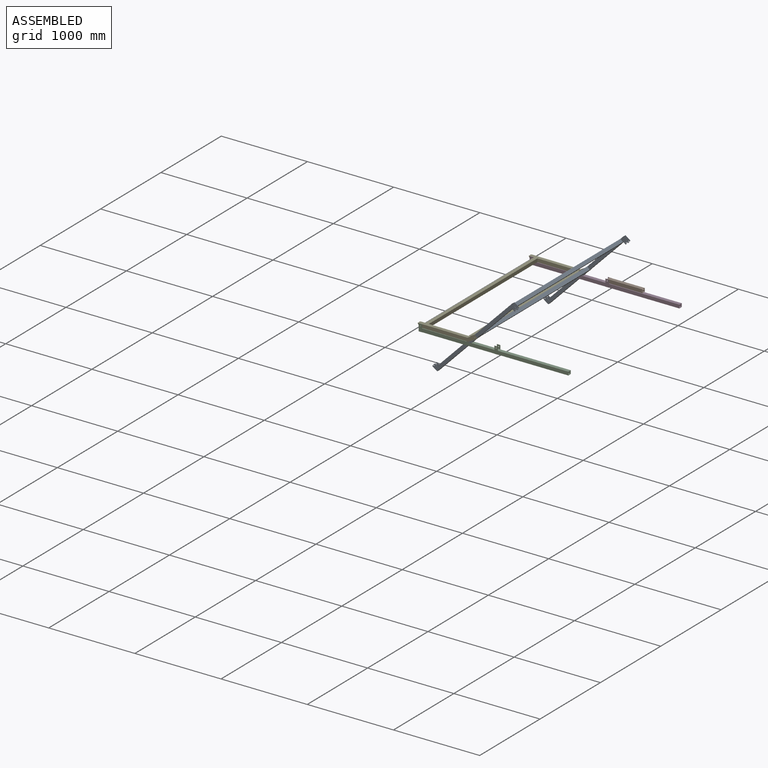
[diagram: assembled view]
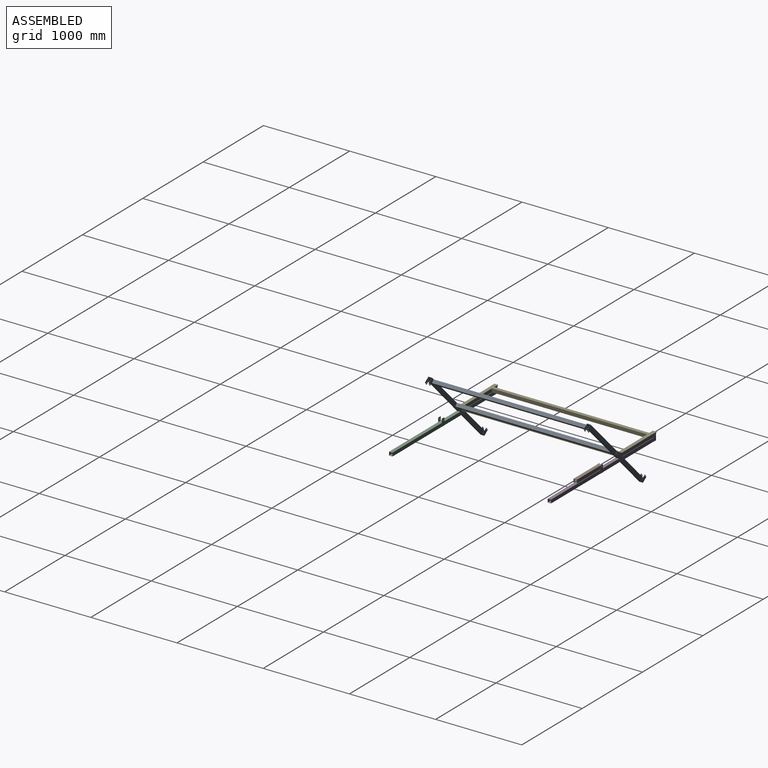
[diagram: assembled view, second angle]
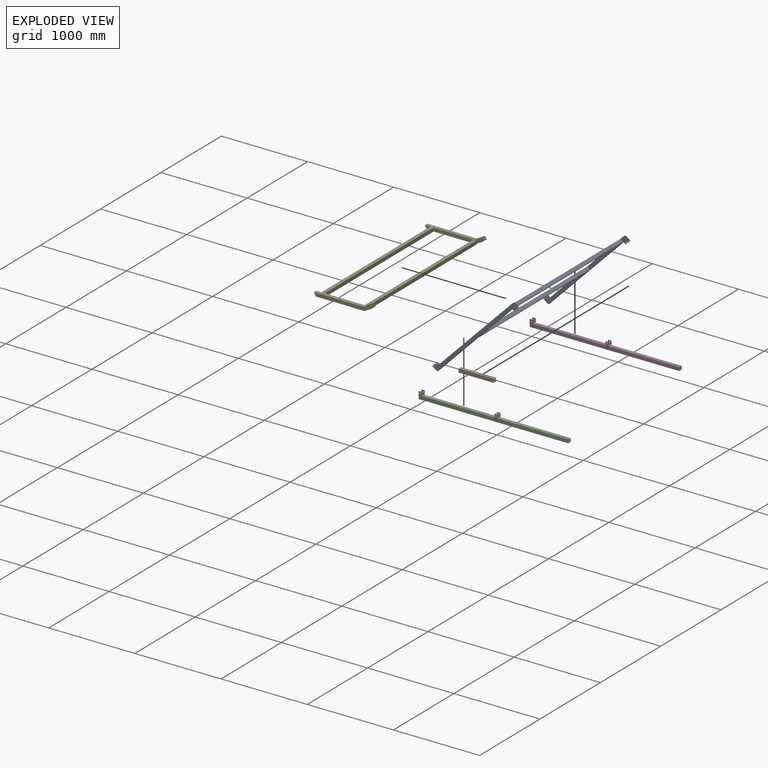
[diagram: exploded view]
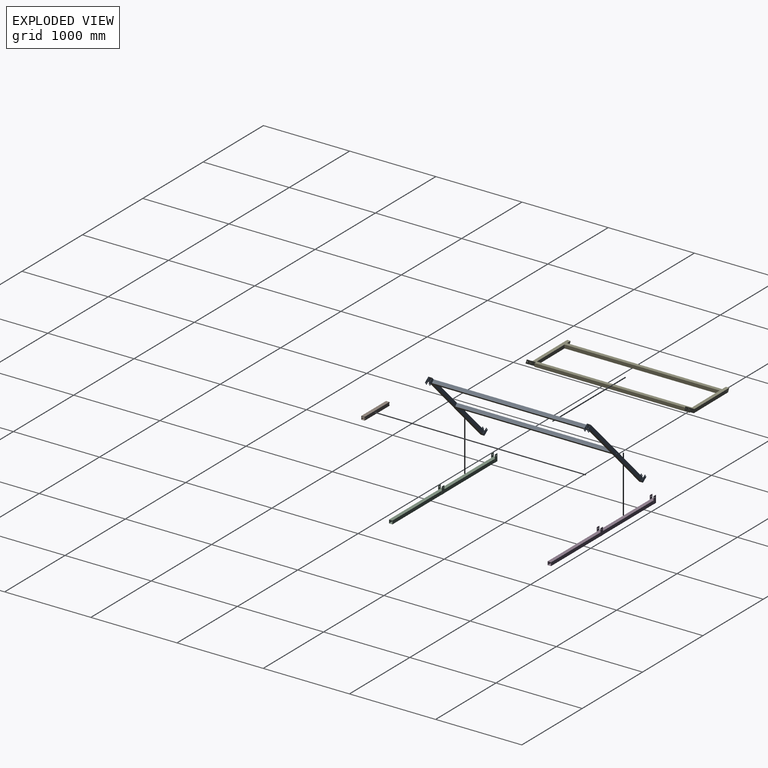
[diagram: exploded view, second angle]
ASSEMBLY  parts=5 mates=3
PART A: 86 faces, bbox 606.6x1884x1205.7 mm
  f0: plane 474.1x263.74mm, normal (0,-1,0), area 20400mm2, adj f4,f5,f43,f44
  f1: plane 577.73x324.45mm, normal (0,-1,0), area 24384.4mm2, adj f4,f5,f6,f16,f17,f42
  f2: plane 44.72x40mm, normal (0,0,-1), area 419.2mm2, adj f4,f5,f9,f10,f12,f13,f20,f34
  f3: plane 44.72x40mm, normal (0,0,1), area 419.2mm2, adj f4,f5,f9,f10,f12,f13,f21,f41
  f4: plane 1880x1124.48mm, normal (0.89,0,0.45), area 244562.8mm2, adj f0,f1,f2,f3,f7,f8,f21,f41
  f5: plane 1880x1124.48mm, normal (-0.89,0,-0.45), area 244562.8mm2, adj f0,f1,f2,f3,f7,f8,f20,f34
  f6: cylinder r=5mm len=40mm, axis (0,-1,0), area 1256.6mm2, adj f1,f7
  f7: plane 1124.48x606.57mm, normal (0,1,0), area 48262mm2, adj f4,f5,f6,f29,f30,f37,f39
  f8: plane 54.19x36.85mm, normal (0,-1,0), area 277.6mm2, adj f4,f5,f23,f24,f45
  f9: plane 1124.48x561.85mm, normal (-0.89,0,-0.45), area 43996.2mm2, adj f2,f3,f12,f13
  f10: plane 1124.48x561.85mm, normal (0.89,0,0.45), area 43996.2mm2, adj f2,f3,f12,f13
  f11: cylinder r=7.5mm len=35mm, axis (0,-1,0), area 1649.3mm2, adj f12,f13
  f12: plane 1124.48x600.98mm, normal (0,-1,0), area 43819.5mm2, adj f2,f3,f9,f10,f11
  f13: plane 1124.48x600.98mm, normal (0,1,0), area 43819.5mm2, adj f2,f3,f9,f10,f11
  f14: plane 32.61x23.17mm, normal (-0.82,0,-0.58), area 80mm2, adj f15,f17,f19,f20
  f15: plane 57.17x40.63mm, normal (0.58,0,-0.82), area 140.3mm2, adj f14,f16,f19,f20
  f16: plane 32.61x23.17mm, normal (0.82,0,0.58), area 80mm2, adj f1,f15,f17,f19
  f17: plane 57.17x40.63mm, normal (-0.58,0,0.82), area 140.3mm2, adj f1,f14,f16,f19,f20
  f18: cylinder r=5mm len=10mm, axis (0,1,0), area 62.8mm2, adj f19,f20
  f19: plane 80.34x73.24mm, normal (0,-1,0), area 2727mm2, adj f14,f15,f16,f17,f18
  f20: plane 80.34x53.39mm, normal (0,1,0), area 1756.6mm2, adj f2,f5,f14,f15,f17,f18
  f21: plane 80.34x53.39mm, normal (0,1,0), area 1756.6mm2, adj f3,f4,f22,f24,f25,f26
  f22: plane 57.17x40.63mm, normal (-0.58,0,0.82), area 140.3mm2, adj f21,f23,f26,f27
  f23: plane 32.61x23.17mm, normal (-0.82,0,-0.58), area 80mm2, adj f8,f22,f24,f27
  f24: plane 57.17x40.63mm, normal (0.58,0,-0.82), area 140.3mm2, adj f8,f21,f23,f26,f27
  f25: cylinder r=5mm len=10mm, axis (0,1,0), area 62.8mm2, adj f21,f27
  f26: plane 32.61x23.17mm, normal (0.82,0,0.58), area 80mm2, adj f21,f22,f24,f27
  f27: plane 80.34x73.24mm, normal (0,-1,0), area 2727mm2, adj f22,f23,f24,f25,f26
  f28: plane 32.61x23.17mm, normal (-0.82,0,-0.58), area 80mm2, adj f29,f31,f33,f34
  f29: plane 57.17x40.63mm, normal (-0.58,0,0.82), area 140.3mm2, adj f7,f28,f30,f33,f34
  f30: plane 32.61x23.17mm, normal (0.82,0,0.58), area 80mm2, adj f7,f29,f31,f33
  f31: plane 57.17x40.63mm, normal (0.58,0,-0.82), area 140.3mm2, adj f28,f30,f33,f34
  f32: cylinder r=5mm len=10mm, axis (0,-1,0), area 62.8mm2, adj f33,f34
  f33: plane 80.34x73.24mm, normal (0,1,0), area 2727mm2, adj f28,f29,f30,f31,f32
  f34: plane 80.34x53.39mm, normal (0,-1,0), area 1756.6mm2, adj f2,f5,f28,f29,f31,f32
  f35: plane 57.17x40.63mm, normal (-0.58,0,0.82), area 140.3mm2, adj f36,f39,f40,f41
  f36: plane 32.61x23.17mm, normal (0.82,0,0.58), area 80mm2, adj f35,f37,f40,f41
  f37: plane 57.17x40.63mm, normal (0.58,0,-0.82), area 140.3mm2, adj f7,f36,f39,f40,f41
  f38: cylinder r=5mm len=10mm, axis (0,-1,0), area 62.8mm2, adj f40,f41
  f39: plane 32.61x23.17mm, normal (-0.82,0,-0.58), area 80mm2, adj f7,f35,f37,f40
  f40: plane 80.34x73.24mm, normal (0,1,0), area 2727mm2, adj f35,f36,f37,f38,f39
  f41: plane 80.34x53.39mm, normal (0,-1,0), area 1756.6mm2, adj f3,f4,f35,f36,f37,f38
  f42: plane 1800x35.78mm, normal (0.45,0,-0.89), area 72000mm2, adj f1,f4,f5,f47
  f43: plane 1800x35.78mm, normal (-0.45,0,0.89), area 72000mm2, adj f0,f4,f5,f46
  f44: plane 1800x35.78mm, normal (0.45,0,-0.89), area 72000mm2, adj f0,f4,f5,f46
  f45: plane 1800x35.78mm, normal (-0.45,0,0.89), area 72000mm2, adj f4,f5,f8,f52
  f46: plane 474.1x263.74mm, normal (0,1,0), area 20400mm2, adj f4,f5,f43,f44
  f47: plane 577.73x324.45mm, normal (0,1,0), area 24384.4mm2, adj f4,f5,f42,f50,f60,f61
  f48: plane 44.72x40mm, normal (0,0,-1), area 419.2mm2, adj f4,f5,f53,f54,f56,f57,f64,f78
  f49: plane 44.72x40mm, normal (0,0,1), area 419.2mm2, adj f4,f5,f53,f54,f56,f57,f65,f85
  f50: cylinder r=5mm len=40mm, axis (0,1,0), area 1256.6mm2, adj f47,f51
  f51: plane 1124.48x606.57mm, normal (0,-1,0), area 48262mm2, adj f4,f5,f50,f73,f74,f81,f83
  f52: plane 54.19x36.85mm, normal (0,1,0), area 277.6mm2, adj f4,f5,f45,f67,f68
  f53: plane 1124.48x561.85mm, normal (-0.89,0,-0.45), area 43996.2mm2, adj f48,f49,f56,f57
  f54: plane 1124.48x561.85mm, normal (0.89,0,0.45), area 43996.2mm2, adj f48,f49,f56,f57
  f55: cylinder r=7.5mm len=35mm, axis (0,1,0), area 1649.3mm2, adj f56,f57
  f56: plane 1124.48x600.98mm, normal (0,1,0), area 43819.5mm2, adj f48,f49,f53,f54,f55
  f57: plane 1124.48x600.98mm, normal (0,-1,0), area 43819.5mm2, adj f48,f49,f53,f54,f55
  f58: plane 32.61x23.17mm, normal (-0.82,0,-0.58), area 80mm2, adj f59,f61,f63,f64
  f59: plane 57.17x40.63mm, normal (0.58,0,-0.82), area 140.3mm2, adj f58,f60,f63,f64
  f60: plane 32.61x23.17mm, normal (0.82,0,0.58), area 80mm2, adj f47,f59,f61,f63
  f61: plane 57.17x40.63mm, normal (-0.58,0,0.82), area 140.3mm2, adj f47,f58,f60,f63,f64
  f62: cylinder r=5mm len=10mm, axis (0,-1,0), area 62.8mm2, adj f63,f64
  f63: plane 80.34x73.24mm, normal (0,1,0), area 2727mm2, adj f58,f59,f60,f61,f62
  f64: plane 80.34x53.39mm, normal (0,-1,0), area 1756.6mm2, adj f5,f48,f58,f59,f61,f62
  f65: plane 80.34x53.39mm, normal (0,-1,0), area 1756.6mm2, adj f4,f49,f66,f68,f69,f70
  f66: plane 57.17x40.63mm, normal (-0.58,0,0.82), area 140.3mm2, adj f65,f67,f70,f71
  f67: plane 32.61x23.17mm, normal (-0.82,0,-0.58), area 80mm2, adj f52,f66,f68,f71
  f68: plane 57.17x40.63mm, normal (0.58,0,-0.82), area 140.3mm2, adj f52,f65,f67,f70,f71
  f69: cylinder r=5mm len=10mm, axis (0,-1,0), area 62.8mm2, adj f65,f71
  f70: plane 32.61x23.17mm, normal (0.82,0,0.58), area 80mm2, adj f65,f66,f68,f71
  f71: plane 80.34x73.24mm, normal (0,1,0), area 2727mm2, adj f66,f67,f68,f69,f70
  f72: plane 32.61x23.17mm, normal (-0.82,0,-0.58), area 80mm2, adj f73,f75,f77,f78
  f73: plane 57.17x40.63mm, normal (-0.58,0,0.82), area 140.3mm2, adj f51,f72,f74,f77,f78
  f74: plane 32.61x23.17mm, normal (0.82,0,0.58), area 80mm2, adj f51,f73,f75,f77
  f75: plane 57.17x40.63mm, normal (0.58,0,-0.82), area 140.3mm2, adj f72,f74,f77,f78
  f76: cylinder r=5mm len=10mm, axis (0,1,0), area 62.8mm2, adj f77,f78
  f77: plane 80.34x73.24mm, normal (0,-1,0), area 2727mm2, adj f72,f73,f74,f75,f76
  f78: plane 80.34x53.39mm, normal (0,1,0), area 1756.6mm2, adj f5,f48,f72,f73,f75,f76
  f79: plane 57.17x40.63mm, normal (-0.58,0,0.82), area 140.3mm2, adj f80,f83,f84,f85
  f80: plane 32.61x23.17mm, normal (0.82,0,0.58), area 80mm2, adj f79,f81,f84,f85
  f81: plane 57.17x40.63mm, normal (0.58,0,-0.82), area 140.3mm2, adj f51,f80,f83,f84,f85
  f82: cylinder r=5mm len=10mm, axis (0,1,0), area 62.8mm2, adj f84,f85
  f83: plane 32.61x23.17mm, normal (-0.82,0,-0.58), area 80mm2, adj f51,f79,f81,f84
  f84: plane 80.34x73.24mm, normal (0,-1,0), area 2727mm2, adj f79,f80,f81,f82,f83
  f85: plane 80.34x53.39mm, normal (0,1,0), area 1756.6mm2, adj f4,f49,f79,f80,f81,f82
PART B: 15 faces, bbox 409.8x40x40 mm
  f0: plane 40x15.67mm, normal (1,0,0), area 261.8mm2, adj f4,f5,f7,f8,f10,f11,f13,f14
  f1: plane 40x15.67mm, normal (1,0,0), area 261.8mm2, adj f3,f5,f7,f8,f9,f11,f13,f14
  f2: plane 40x40mm, normal (-1,0,0), area 375mm2, adj f3,f4,f7,f8,f9,f10,f13,f14
  f3: plane 409.77x40mm, normal (0,0,1), area 16390.8mm2, adj f1,f2,f7,f8
  f4: plane 409.77x40mm, normal (0,0,-1), area 16390.8mm2, adj f0,f2,f7,f8
  f5: cylinder r=5mm len=40mm, axis (0,-1,0), area 837.8mm2, adj f0,f1,f7,f8
  f6: cylinder r=5mm len=40mm, axis (0,-1,0), area 1256.6mm2, adj f7,f8
  f7: plane 409.77x40mm, normal (0,1,0), area 16249mm2, adj f0,f1,f2,f3,f4,f5,f6
  f8: plane 409.77x40mm, normal (0,-1,0), area 16249mm2, adj f0,f1,f2,f3,f4,f5,f6
  f9: plane 409.77x35mm, normal (0,0,-1), area 14341.9mm2, adj f1,f2,f13,f14
  f10: plane 409.77x35mm, normal (0,0,1), area 14341.9mm2, adj f0,f2,f13,f14
  f11: cylinder r=7.5mm len=35mm, axis (0,-1,0), area 1003.1mm2, adj f0,f1,f13,f14
  f12: cylinder r=7.5mm len=35mm, axis (0,-1,0), area 1649.3mm2, adj f13,f14
  f13: plane 409.77x35mm, normal (0,-1,0), area 14040mm2, adj f0,f1,f2,f9,f10,f11,f12
  f14: plane 409.77x35mm, normal (0,1,0), area 14040mm2, adj f0,f1,f2,f9,f10,f11,f12
PART C: 34 faces, bbox 1735.5x44x85 mm
  f0: plane 816.96x40mm, normal (0,1,0), area 32678.5mm2, adj f5,f6,f7,f29
  f1: plane 838.5x40mm, normal (0,1,0), area 33540mm2, adj f6,f7,f24,f31
  f2: plane 816.96x40mm, normal (0,-1,0), area 32678.5mm2, adj f5,f6,f7,f21
  f3: plane 838.5x40mm, normal (0,-1,0), area 33540mm2, adj f6,f7,f13,f19
  f4: plane 85x44mm, normal (-1,0,0), area 715mm2, adj f6,f7,f8,f9,f10,f11,f12,f14
  f5: plane 40x40mm, normal (1,0,0), area 375mm2, adj f0,f2,f6,f7,f8,f9,f10,f11
  f6: plane 1735.46x40mm, normal (0,0,1), area 69418.5mm2, adj f0,f1,f2,f3,f4,f5,f12,f17
  f7: plane 1735.46x44mm, normal (0,0,-1), area 69738.5mm2, adj f0,f1,f2,f3,f4,f5,f13,f16
  f8: plane 1735.46x35mm, normal (0,0,-1), area 60741.2mm2, adj f4,f5,f10,f11
  f9: plane 1735.46x35mm, normal (0,0,1), area 60741.2mm2, adj f4,f5,f10,f11
  f10: plane 1735.46x35mm, normal (0,-1,0), area 60741.2mm2, adj f4,f5,f8,f9
  f11: plane 1735.46x35mm, normal (0,1,0), area 60741.2mm2, adj f4,f5,f8,f9
  f12: plane 45x40mm, normal (0,1,0), area 1721.5mm2, adj f4,f6,f13,f14,f15
  f13: plane 85x2mm, normal (1,0,0), area 170mm2, adj f3,f7,f12,f14,f16
  f14: plane 40x2mm, normal (0,0,1), area 80mm2, adj f4,f12,f13,f16
  f15: cylinder r=5mm len=10mm, axis (0,1,0), area 62.8mm2, adj f12,f16
  f16: plane 85x40mm, normal (0,-1,0), area 3321.5mm2, adj f4,f7,f13,f14,f15
  f17: plane 45x40mm, normal (0,1,0), area 1721.5mm2, adj f6,f18,f19,f20,f21
  f18: plane 40x2mm, normal (0,0,1), area 80mm2, adj f17,f19,f21,f22
  f19: plane 85x2mm, normal (-1,0,0), area 170mm2, adj f3,f7,f17,f18,f22
  f20: cylinder r=5mm len=10mm, axis (0,1,0), area 62.8mm2, adj f17,f22
  f21: plane 85x2mm, normal (1,0,0), area 170mm2, adj f2,f7,f17,f18,f22
  f22: plane 85x40mm, normal (0,-1,0), area 3321.5mm2, adj f7,f18,f19,f20,f21
  f23: plane 40x2mm, normal (0,0,1), area 80mm2, adj f4,f24,f26,f27
  f24: plane 85x2mm, normal (1,0,0), area 170mm2, adj f1,f7,f23,f26,f27
  f25: cylinder r=5mm len=10mm, axis (0,-1,0), area 62.8mm2, adj f26,f27
  f26: plane 85x40mm, normal (0,1,0), area 3321.5mm2, adj f4,f7,f23,f24,f25
  f27: plane 45x40mm, normal (0,-1,0), area 1721.5mm2, adj f4,f6,f23,f24,f25
  f28: plane 40x2mm, normal (0,0,1), area 80mm2, adj f29,f31,f32,f33
  f29: plane 85x2mm, normal (1,0,0), area 170mm2, adj f0,f7,f28,f32,f33
  f30: cylinder r=5mm len=10mm, axis (0,-1,0), area 62.8mm2, adj f32,f33
  f31: plane 85x2mm, normal (-1,0,0), area 170mm2, adj f1,f7,f28,f32,f33
  f32: plane 85x40mm, normal (0,1,0), area 3321.5mm2, adj f7,f28,f29,f30,f31
  f33: plane 45x40mm, normal (0,-1,0), area 1721.5mm2, adj f6,f28,f29,f30,f31
PART D: same geometry as C
PART E: 66 faces, bbox 304.3x1884x623.3 mm
  f0: plane 1800x35.78mm, normal (0.45,0,0.89), area 71871.3mm2, adj f2,f7,f8,f15,f19,f30,f32,f46
  f1: plane 429.37x241.39mm, normal (0,-1,0), area 18400mm2, adj f7,f8,f28,f29
  f2: plane 100.31x5.41mm, normal (1,0,0.05), area 200.9mm2, adj f0,f15,f17,f19
  f3: plane 62.91x54.3mm, normal (0,-1,0), area 1949.6mm2, adj f6,f7,f8,f9,f27
  f4: plane 515.57x298.12mm, normal (0,1,0), area 22575.5mm2, adj f6,f7,f8,f9,f20,f23
  f5: plane 44.75x40mm, normal (0.89,0,0.45), area 380.2mm2, adj f7,f8,f10,f11,f13,f14,f15,f26
  f6: plane 44.72x40mm, normal (0,0,-1), area 339.8mm2, adj f3,f4,f7,f8,f10,f11,f13,f14
  f7: plane 1880x519.47mm, normal (0.89,0,-0.45), area 189355.1mm2, adj f0,f1,f3,f4,f5,f6,f15,f27
  f8: plane 1880x551.9mm, normal (-0.89,0,0.45), area 193259.4mm2, adj f0,f1,f3,f4,f5,f6,f15,f16
  f9: cylinder r=5mm len=40mm, axis (0,-1,0), area 1256.6mm2, adj f3,f4
  f10: plane 509.39x254.52mm, normal (-0.89,0,0.45), area 20499.8mm2, adj f5,f6,f13,f14
  f11: plane 549.66x274.64mm, normal (0.89,0,-0.45), area 22120.5mm2, adj f5,f6,f13,f14
  f12: cylinder r=7mm len=36mm, axis (0,-1,0), area 1583.4mm2, adj f13,f14
  f13: plane 549.66x294.77mm, normal (0,-1,0), area 21156.2mm2, adj f5,f6,f10,f11,f12
  f14: plane 549.66x294.77mm, normal (0,1,0), area 21156.2mm2, adj f5,f6,f10,f11,f12
  f15: plane 116.13x52.35mm, normal (0,1,0), area 3603.5mm2, adj f0,f2,f5,f7,f8,f16,f17,f18
  f16: plane 105.57x5.69mm, normal (-1,0,-0.05), area 211.4mm2, adj f8,f15,f17,f19
  f17: plane 39.94x2.15mm, normal (-0.05,0,1), area 80mm2, adj f2,f15,f16,f19
  f18: cylinder r=5mm len=10mm, axis (0,1,0), area 62.8mm2, adj f15,f19
  f19: plane 107.72x45.35mm, normal (0,-1,0), area 3653.4mm2, adj f0,f2,f8,f16,f17,f18
  f20: plane 116.13x6.26mm, normal (-1,0,-0.05), area 232.6mm2, adj f4,f21,f23,f25,f26
  f21: plane 39.94x2.15mm, normal (-0.05,0,1), area 80mm2, adj f20,f22,f25,f26
  f22: plane 116.13x6.26mm, normal (1,0,0.05), area 232.6mm2, adj f21,f23,f25,f26
  f23: plane 39.94x2.15mm, normal (0.05,0,-1), area 80mm2, adj f4,f20,f22,f25
  f24: cylinder r=5mm len=10mm, axis (0,-1,0), area 62.8mm2, adj f25,f26
  f25: plane 118.28x46.2mm, normal (0,1,0), area 4573.5mm2, adj f20,f21,f22,f23,f24
  f26: plane 116.13x46.2mm, normal (0,-1,0), area 3549.6mm2, adj f5,f8,f20,f21,f22,f24
  f27: plane 1800x35.78mm, normal (-0.45,0,-0.89), area 72000mm2, adj f3,f7,f8,f33
  f28: plane 1800x35.78mm, normal (0.45,0,0.89), area 72000mm2, adj f1,f7,f8,f31
  f29: plane 1800x35.78mm, normal (-0.45,0,-0.89), area 72000mm2, adj f1,f7,f8,f31
  f30: plane 116.13x52.35mm, normal (0,-1,0), area 3541.3mm2, adj f0,f7,f8,f32,f35,f43,f44,f45
  f31: plane 429.37x241.39mm, normal (0,1,0), area 18400mm2, adj f7,f8,f28,f29
  f32: plane 100.31x5.41mm, normal (1,0,0.05), area 200.9mm2, adj f0,f30,f44,f46
  f33: plane 62.91x54.3mm, normal (0,1,0), area 1949.6mm2, adj f7,f8,f27,f36,f37
  f34: plane 515.57x298.12mm, normal (0,-1,0), area 22575.5mm2, adj f7,f8,f36,f37,f47,f50
  f35: plane 44.75x40mm, normal (0.89,0,0.45), area 380.2mm2, adj f7,f8,f30,f38,f39,f41,f42,f53
  f36: plane 44.72x40mm, normal (0,0,-1), area 339.8mm2, adj f7,f8,f33,f34,f38,f39,f41,f42
  f37: cylinder r=5mm len=40mm, axis (0,1,0), area 1256.6mm2, adj f33,f34
  f38: plane 509.39x254.52mm, normal (-0.89,0,0.45), area 20499.8mm2, adj f35,f36,f41,f42
  f39: plane 549.66x274.64mm, normal (0.89,0,-0.45), area 22120.5mm2, adj f35,f36,f41,f42
  f40: cylinder r=7mm len=36mm, axis (0,1,0), area 1583.4mm2, adj f41,f42
  f41: plane 549.66x294.77mm, normal (0,1,0), area 21156.2mm2, adj f35,f36,f38,f39,f40
  f42: plane 549.66x294.77mm, normal (0,-1,0), area 21156.2mm2, adj f35,f36,f38,f39,f40
  f43: plane 105.57x5.69mm, normal (-1,0,-0.05), area 211.4mm2, adj f8,f30,f44,f46
  f44: plane 39.94x2.15mm, normal (-0.05,0,1), area 80mm2, adj f30,f32,f43,f46
  f45: cylinder r=5mm len=10mm, axis (0,-1,0), area 62.8mm2, adj f30,f46
  f46: plane 107.72x45.35mm, normal (0,1,0), area 3653.4mm2, adj f0,f8,f32,f43,f44,f45
  f47: plane 116.13x6.26mm, normal (-1,0,-0.05), area 232.6mm2, adj f34,f48,f50,f52,f53
  f48: plane 39.94x2.15mm, normal (-0.05,0,1), area 80mm2, adj f47,f49,f52,f53
  f49: plane 116.13x6.26mm, normal (1,0,0.05), area 232.6mm2, adj f48,f50,f52,f53
  f50: plane 39.94x2.15mm, normal (0.05,0,-1), area 80mm2, adj f34,f47,f49,f52
  f51: cylinder r=5mm len=10mm, axis (0,1,0), area 62.8mm2, adj f52,f53
  f52: plane 118.28x46.2mm, normal (0,-1,0), area 4573.5mm2, adj f47,f48,f49,f50,f51
  f53: plane 116.13x46.2mm, normal (0,1,0), area 3549.6mm2, adj f8,f35,f47,f48,f49,f51
  f54: plane 46.96x42.64mm, normal (0,1,0), area 1162.8mm2, adj f35,f55,f56,f57,f58
  f55: plane 1782x31.3mm, normal (-0.89,0,0.45), area 62370mm2, adj f30,f54,f56,f58,f59
  f56: plane 1782x31.3mm, normal (-0.45,0,-0.89), area 62370mm2, adj f30,f54,f55,f57,f59
  f57: plane 1782x31.3mm, normal (0.89,0,-0.45), area 62370mm2, adj f54,f56,f58,f59
  f58: plane 1782x31.3mm, normal (0.45,0,0.89), area 62370mm2, adj f54,f55,f57,f59
  f59: plane 46.96x46.96mm, normal (0,-1,0), area 1225mm2, adj f55,f56,f57,f58
  f60: plane 1782x31.3mm, normal (0.45,0,0.89), area 62370mm2, adj f61,f63,f64,f65
  f61: plane 1782x31.3mm, normal (-0.89,0,0.45), area 62370mm2, adj f60,f62,f64,f65
  f62: plane 1782x31.3mm, normal (-0.45,0,-0.89), area 62370mm2, adj f61,f63,f64,f65
  f63: plane 1782x31.3mm, normal (0.89,0,-0.45), area 62370mm2, adj f60,f62,f64,f65
  f64: plane 46.96x46.96mm, normal (0,-1,0), area 1225mm2, adj f60,f61,f62,f63
  f65: plane 46.96x46.96mm, normal (0,1,0), area 1225mm2, adj f60,f61,f62,f63
PLACE A rot(axis=(0,1,0),71deg) t=(-0.31,0,80.4)mm
PLACE B rot(axis=(0,1,0),180deg) t=(1757,0,0.48)mm
PLACE C t=(0,-1840,0)mm
PLACE D at identity fixed
PLACE E rot(axis=(0,1,0),63.7deg) t=(0,0,0)mm
MATE revolute E.f9 <-> D.f15  axis (0,-1,0) through (0,0,0)mm
MATE revolute B.f5 <-> D.f20  axis (0,-1,0) through (878.5,0,0)mm
MATE revolute E.f18 <-> A.f6  axis (0,-1,0) through (628.56,40,42.63)mm
